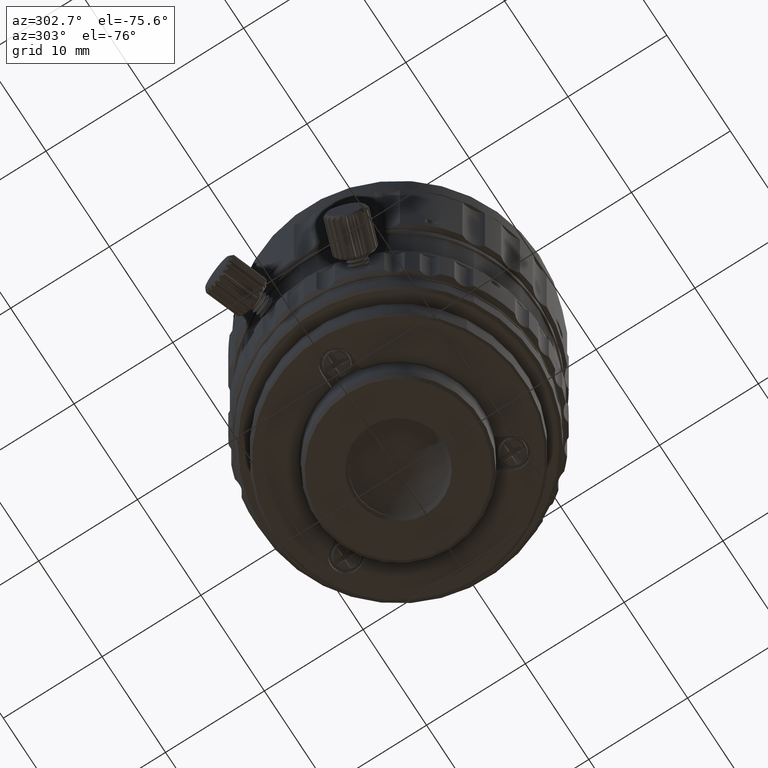
[diagram: clean part render]
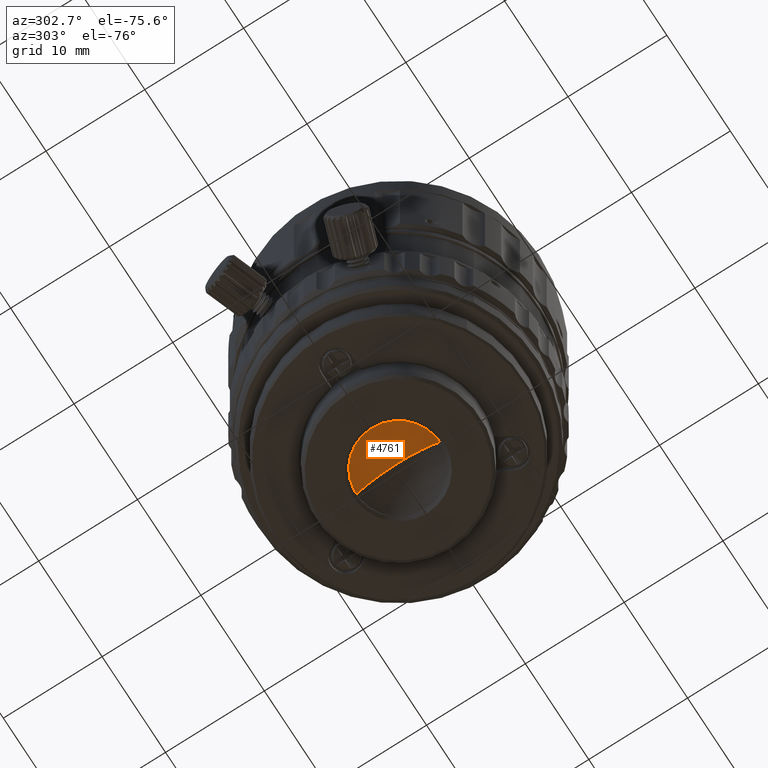
[diagram: same view with one face highlighted and labeled with its STEP entity id]
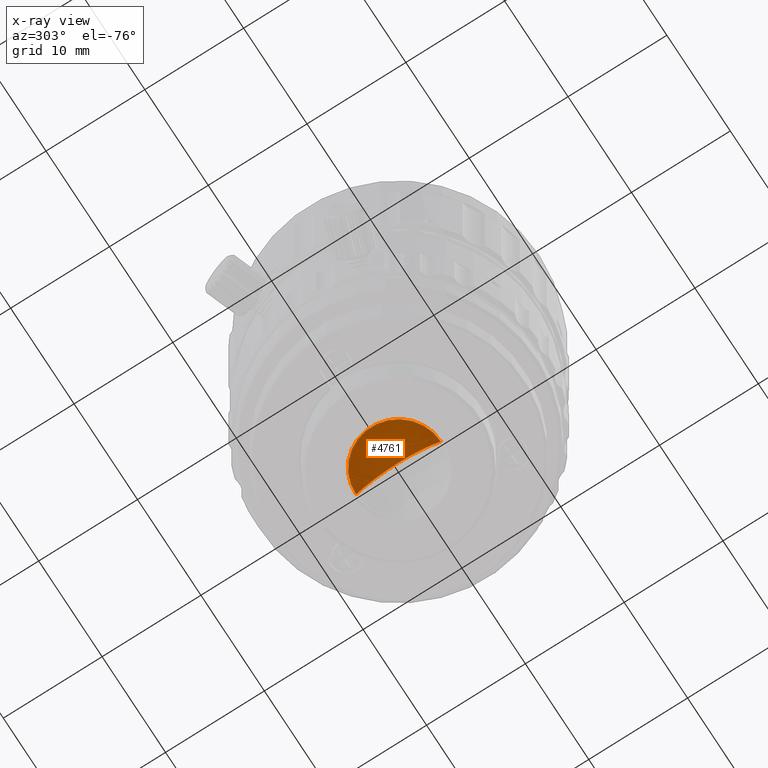
[diagram: x-ray of the same camera — body ghosted, the highlighted face saturated]
A machine part, auxiliary view. The second image highlights one B-rep face of the part: STEP entity #4761.
The next image is the same camera in x-ray: the body ghosted, the highlighted face saturated — about 0% of this face is hidden behind the body in this view.
In plain terms, the highlighted spherical surface has radius 5.878 mm.
Its self-contained STEP definition (entity closure, byte-faithful):
#357 = DIRECTION ( 'NONE',  ( 0.000000000000000000, 1.000000000000000000, 0.000000000000000000 ) ) ;
#3038 = CARTESIAN_POINT ( 'NONE',  ( 0.000000000000000000, 0.000000000000000000, -16.29400006966600145 ) ) ;
#4761 = ADVANCED_FACE ( 'NONE', ( #14150 ), #8754, .F. ) ;
#5453 = EDGE_CURVE ( 'NONE', #56620, #14710, #31762, .T. ) ;
#8347 = CARTESIAN_POINT ( 'NONE',  ( 0.000000000000000000, -2.173558312916769132E-31, -10.41600006966599956 ) ) ;
#8754 = SPHERICAL_SURFACE ( 'NONE', #50945, 5.878000000000000114 ) ;
#11750 = CIRCLE ( 'NONE', #32791, 5.878000000000000114 ) ;
#14150 = FACE_OUTER_BOUND ( 'NONE', #53978, .T. ) ;
#14369 = AXIS2_PLACEMENT_3D ( 'NONE', #34354, #22016, #21461 ) ;
#14710 = VERTEX_POINT ( 'NONE', #41254 ) ;
#17624 = EDGE_CURVE ( 'NONE', #56620, #33699, #11750, .T. ) ;
#21461 = DIRECTION ( 'NONE',  ( 0.000000000000000000, 0.000000000000000000, 1.000000000000000000 ) ) ;
#22016 = DIRECTION ( 'NONE',  ( -1.000000000000000000, 0.000000000000000000, 0.000000000000000000 ) ) ;
#22306 = CIRCLE ( 'NONE', #23181, 4.312638171700000633 ) ;
#23007 = EDGE_CURVE ( 'NONE', #14710, #33699, #22306, .T. ) ;
#23049 = ORIENTED_EDGE ( 'NONE', *, *, #5453, .F. ) ;
#23181 = AXIS2_PLACEMENT_3D ( 'NONE', #30461, #34469, #357 ) ;
#30461 = CARTESIAN_POINT ( 'NONE',  ( 0.000000000000000000, 0.000000000000000000, -12.30000006966599990 ) ) ;
#31762 = CIRCLE ( 'NONE', #14369, 5.878000000000001002 ) ;
#32791 = AXIS2_PLACEMENT_3D ( 'NONE', #3038, #34262, #42862 ) ;
#33699 = VERTEX_POINT ( 'NONE', #34457 ) ;
#34262 = DIRECTION ( 'NONE',  ( 1.000000000000000000, 1.224646799147353207E-16, 7.498798913309293513E-33 ) ) ;
#34354 = CARTESIAN_POINT ( 'NONE',  ( 0.000000000000000000, 0.000000000000000000, -16.29400006966600145 ) ) ;
#34457 = CARTESIAN_POINT ( 'NONE',  ( 5.281458532852820115E-16, -4.312638171699773260, -12.30000006966599990 ) ) ;
#34469 = DIRECTION ( 'NONE',  ( 0.000000000000000000, 0.000000000000000000, 1.000000000000000000 ) ) ;
#40301 = ORIENTED_EDGE ( 'NONE', *, *, #23007, .F. ) ;
#41254 = CARTESIAN_POINT ( 'NONE',  ( 0.000000000000000000, 4.312638171699773260, -12.30000006966599990 ) ) ;
#42862 = DIRECTION ( 'NONE',  ( -1.224646799147353207E-16, 1.000000000000000000, 0.000000000000000000 ) ) ;
#43444 = DIRECTION ( 'NONE',  ( 1.000000000000000000, -0.000000000000000000, 0.000000000000000000 ) ) ;
#43984 = CARTESIAN_POINT ( 'NONE',  ( 0.000000000000000000, 0.000000000000000000, -16.29400006966600145 ) ) ;
#48958 = ORIENTED_EDGE ( 'NONE', *, *, #17624, .T. ) ;
#50945 = AXIS2_PLACEMENT_3D ( 'NONE', #43984, #43444, #52592 ) ;
#52592 = DIRECTION ( 'NONE',  ( 0.000000000000000000, 1.000000000000000000, 0.000000000000000000 ) ) ;
#53978 = EDGE_LOOP ( 'NONE', ( #23049, #48958, #40301 ) ) ;
#56620 = VERTEX_POINT ( 'NONE', #8347 ) ;